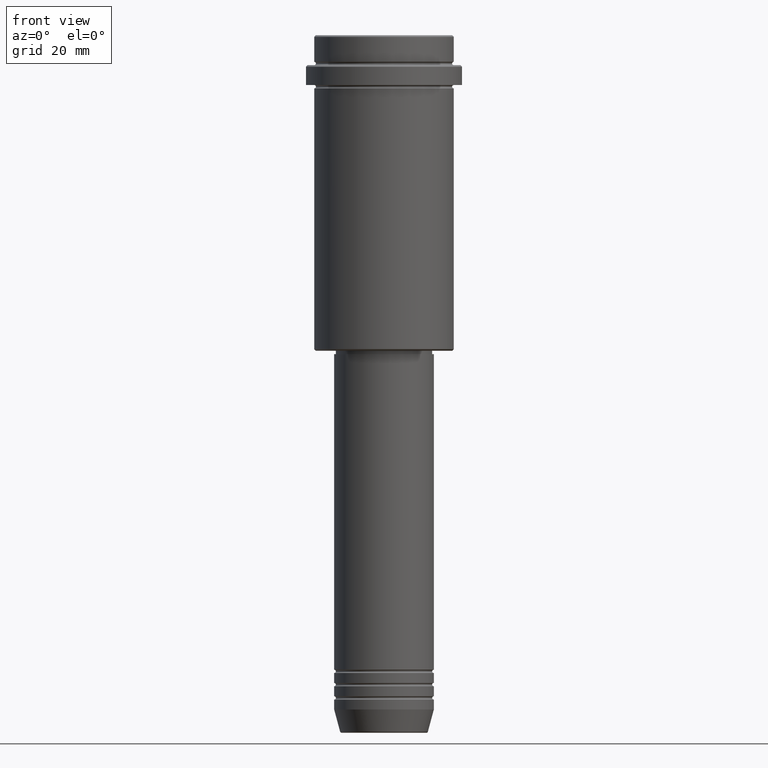
[diagram: clean part render]
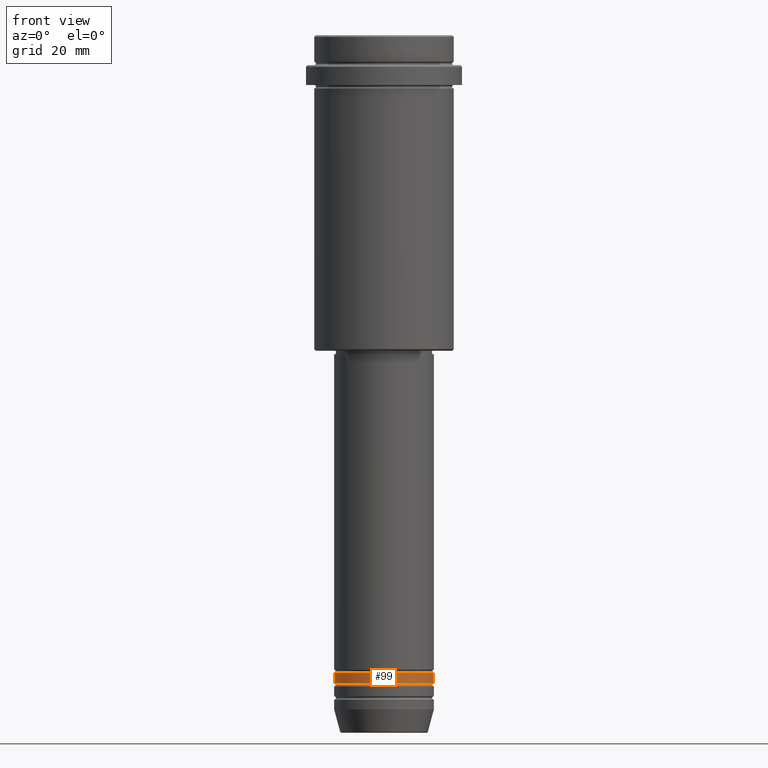
[diagram: same view with one face highlighted and labeled with its STEP entity id]
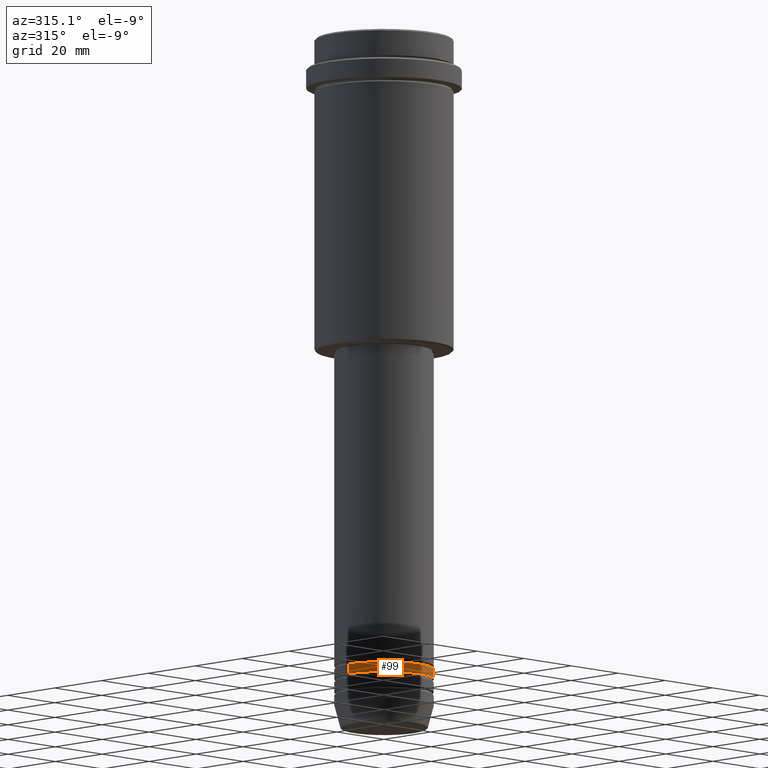
[diagram: same view with one face highlighted and labeled with its STEP entity id]
A machine part, front view. The second image highlights one B-rep face of the part: STEP entity #99.
A second angle (auxiliary view) of the same face is appended — the face is thin or edge-on in the first view.
In plain terms, the highlighted cylindrical surface (partial cylindrical patch) has radius 15 mm, axis along (-0, -0, 1).
Its self-contained STEP definition (entity closure, byte-faithful):
#25 = ORIENTED_EDGE ( 'NONE', *, *, #1042, .F. ) ;
#32 = CARTESIAN_POINT ( 'NONE',  ( -15.00000000000000000, 1.836970198721029589E-15, 0.000000000000000000 ) ) ;
#48 = LINE ( 'NONE', #32, #1389 ) ;
#99 = ADVANCED_FACE ( 'NONE', ( #365 ), #334, .T. ) ;
#161 = CARTESIAN_POINT ( 'NONE',  ( 0.000000000000000000, 0.000000000000000000, -194.9999999999998863 ) ) ;
#205 = EDGE_CURVE ( 'NONE', #899, #1384, #682, .T. ) ;
#315 = VERTEX_POINT ( 'NONE', #580 ) ;
#323 = AXIS2_PLACEMENT_3D ( 'NONE', #656, #893, #876 ) ;
#334 = CYLINDRICAL_SURFACE ( 'NONE', #323, 15.00000000000000000 ) ;
#365 = FACE_OUTER_BOUND ( 'NONE', #758, .T. ) ;
#432 = ORIENTED_EDGE ( 'NONE', *, *, #205, .T. ) ;
#509 = ORIENTED_EDGE ( 'NONE', *, *, #607, .T. ) ;
#560 = VERTEX_POINT ( 'NONE', #1361 ) ;
#562 = CARTESIAN_POINT ( 'NONE',  ( 15.00000000000000000, 0.000000000000000000, -194.9999999999998863 ) ) ;
#580 = CARTESIAN_POINT ( 'NONE',  ( -15.00000000000000000, 1.836970198721029589E-15, -194.9999999999998863 ) ) ;
#596 = AXIS2_PLACEMENT_3D ( 'NONE', #1294, #1058, #1145 ) ;
#607 = EDGE_CURVE ( 'NONE', #315, #899, #710, .T. ) ;
#656 = CARTESIAN_POINT ( 'NONE',  ( 0.000000000000000000, 0.000000000000000000, 0.000000000000000000 ) ) ;
#682 = LINE ( 'NONE', #1325, #797 ) ;
#694 = DIRECTION ( 'NONE',  ( -0.000000000000000000, -0.000000000000000000, 1.000000000000000000 ) ) ;
#710 = CIRCLE ( 'NONE', #1416, 15.00000000000000000 ) ;
#758 = EDGE_LOOP ( 'NONE', ( #25, #509, #432, #1196 ) ) ;
#761 = EDGE_CURVE ( 'NONE', #560, #1384, #1090, .T. ) ;
#797 = VECTOR ( 'NONE', #995, 1000.000000000000000 ) ;
#876 = DIRECTION ( 'NONE',  ( 1.000000000000000000, 0.000000000000000000, 0.000000000000000000 ) ) ;
#893 = DIRECTION ( 'NONE',  ( -0.000000000000000000, -0.000000000000000000, 1.000000000000000000 ) ) ;
#899 = VERTEX_POINT ( 'NONE', #562 ) ;
#935 = CARTESIAN_POINT ( 'NONE',  ( 15.00000000000000000, 0.000000000000000000, -191.9999999999998863 ) ) ;
#995 = DIRECTION ( 'NONE',  ( -0.000000000000000000, -0.000000000000000000, 1.000000000000000000 ) ) ;
#1042 = EDGE_CURVE ( 'NONE', #315, #560, #48, .T. ) ;
#1058 = DIRECTION ( 'NONE',  ( -0.000000000000000000, -0.000000000000000000, 1.000000000000000000 ) ) ;
#1090 = CIRCLE ( 'NONE', #596, 15.00000000000000000 ) ;
#1123 = DIRECTION ( 'NONE',  ( 1.000000000000000000, 0.000000000000000000, 0.000000000000000000 ) ) ;
#1145 = DIRECTION ( 'NONE',  ( 1.000000000000000000, 0.000000000000000000, 0.000000000000000000 ) ) ;
#1196 = ORIENTED_EDGE ( 'NONE', *, *, #761, .F. ) ;
#1223 = DIRECTION ( 'NONE',  ( -0.000000000000000000, -0.000000000000000000, 1.000000000000000000 ) ) ;
#1294 = CARTESIAN_POINT ( 'NONE',  ( 0.000000000000000000, 0.000000000000000000, -191.9999999999998863 ) ) ;
#1325 = CARTESIAN_POINT ( 'NONE',  ( 15.00000000000000000, 0.000000000000000000, 0.000000000000000000 ) ) ;
#1361 = CARTESIAN_POINT ( 'NONE',  ( -15.00000000000000000, 1.836970198721029589E-15, -191.9999999999998863 ) ) ;
#1384 = VERTEX_POINT ( 'NONE', #935 ) ;
#1389 = VECTOR ( 'NONE', #1223, 1000.000000000000000 ) ;
#1416 = AXIS2_PLACEMENT_3D ( 'NONE', #161, #694, #1123 ) ;